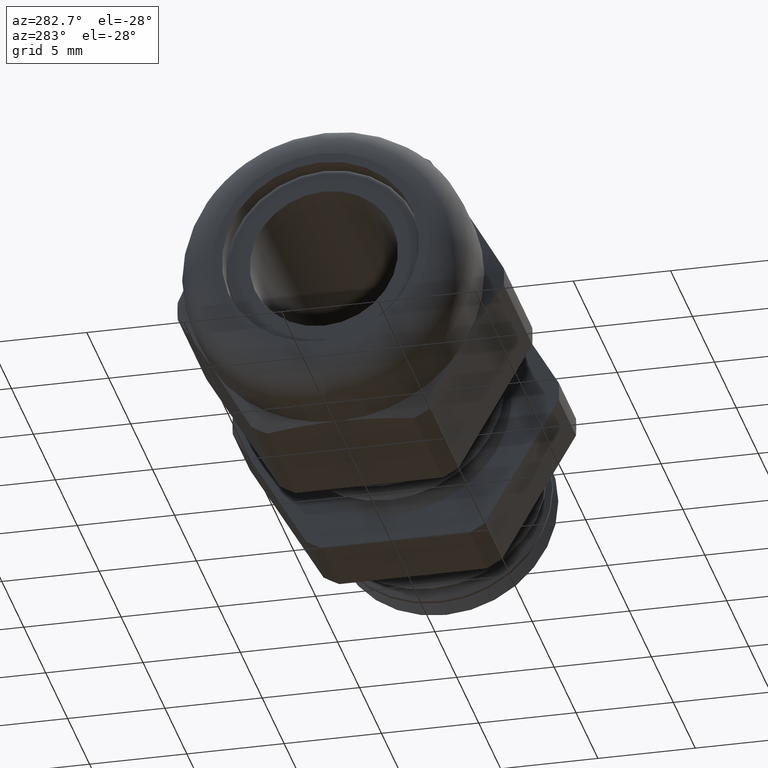
[diagram: clean part render]
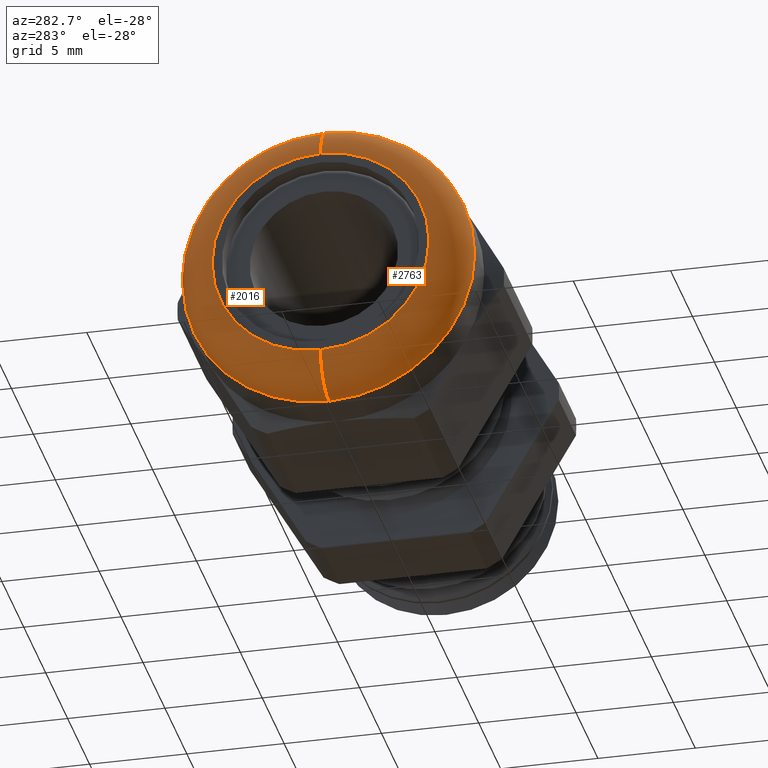
[diagram: same view with one multi-face feature highlighted, each face labeled with its STEP entity id]
A machine part, auxiliary view. The highlighted faces form ONE feature: a constant-radius fillet chain: 2 tangent blend faces with common blend radius 1.9152 mm. The faces share edges in the B-rep.
Their STEP definitions:
[1] entity #2763 (Torus):
#1252 = TOROIDAL_SURFACE ( 'NONE', #1315, 0.2195999999999996800, 0.07540000000000003600 ) ;
#1253 = FACE_OUTER_BOUND ( 'NONE', #2755, .T. ) ;
#1302 = DIRECTION ( 'NONE',  ( 0.0000000000000000000, 0.0000000000000000000, -1.000000000000000000 ) ) ;
#1303 = DIRECTION ( 'NONE',  ( 1.000000000000000000, 0.0000000000000000000, 0.0000000000000000000 ) ) ;
#1304 = AXIS2_PLACEMENT_3D ( 'NONE', #1310, #1303, #1302 ) ;
#1305 = CIRCLE ( 'NONE', #1304, 0.2949999999999997100 ) ;
#1310 = CARTESIAN_POINT ( 'NONE',  ( -0.7546000000000001600, 0.0000000000000000000, 0.0000000000000000000 ) ) ;
#1312 = DIRECTION ( 'NONE',  ( 0.0000000000000000000, 0.0000000000000000000, -1.000000000000000000 ) ) ;
#1313 = DIRECTION ( 'NONE',  ( 1.000000000000000000, 0.0000000000000000000, 0.0000000000000000000 ) ) ;
#1314 = CARTESIAN_POINT ( 'NONE',  ( -0.7546000000000001600, 0.0000000000000000000, 0.0000000000000000000 ) ) ;
#1315 = AXIS2_PLACEMENT_3D ( 'NONE', #1314, #1313, #1312 ) ;
#1446 = ORIENTED_EDGE ( 'NONE', *, *, #2030, .T. ) ;
#1502 = ORIENTED_EDGE ( 'NONE', *, *, #2767, .F. ) ;
#1598 = ORIENTED_EDGE ( 'NONE', *, *, #2045, .F. ) ;
#1609 = EDGE_CURVE ( 'NONE', #2020, #2019, #3018, .T. ) ;
#2019 = VERTEX_POINT ( 'NONE', #2320 ) ;
#2020 = VERTEX_POINT ( 'NONE', #2319 ) ;
#2028 = VERTEX_POINT ( 'NONE', #2370 ) ;
#2030 = EDGE_CURVE ( 'NONE', #2020, #2028, #2368, .T. ) ;
#2045 = EDGE_CURVE ( 'NONE', #2019, #2046, #2408, .T. ) ;
#2046 = VERTEX_POINT ( 'NONE', #2403 ) ;
#2319 = CARTESIAN_POINT ( 'NONE',  ( -0.8300000000000001800, 0.0000000000000000000, -0.2195999999999996800 ) ) ;
#2320 = CARTESIAN_POINT ( 'NONE',  ( -0.8300000000000001800, 3.151016214206136600E-017, 0.2195999999999996800 ) ) ;
#2364 = DIRECTION ( 'NONE',  ( 0.0000000000000000000, 0.0000000000000000000, -1.000000000000000000 ) ) ;
#2365 = DIRECTION ( 'NONE',  ( 0.0000000000000000000, -1.000000000000000000, 0.0000000000000000000 ) ) ;
#2366 = CARTESIAN_POINT ( 'NONE',  ( -0.7546000000000001600, 0.0000000000000000000, -0.2195999999999996800 ) ) ;
#2367 = AXIS2_PLACEMENT_3D ( 'NONE', #2366, #2365, #2364 ) ;
#2368 = CIRCLE ( 'NONE', #2367, 0.07540000000000003600 ) ;
#2370 = CARTESIAN_POINT ( 'NONE',  ( -0.7546000000000001600, 3.612708057484688900E-017, -0.2949999999999997100 ) ) ;
#2403 = CARTESIAN_POINT ( 'NONE',  ( -0.7546000000000001600, 0.0000000000000000000, 0.2949999999999997100 ) ) ;
#2404 = DIRECTION ( 'NONE',  ( 0.0000000000000000000, 1.224646799147353500E-016, 1.000000000000000000 ) ) ;
#2405 = DIRECTION ( 'NONE',  ( 0.0000000000000000000, 1.000000000000000000, -1.224646799147353200E-016 ) ) ;
#2406 = CARTESIAN_POINT ( 'NONE',  ( -0.7546000000000001600, 2.689324370927583800E-017, 0.2195999999999996800 ) ) ;
#2407 = AXIS2_PLACEMENT_3D ( 'NONE', #2406, #2405, #2404 ) ;
#2408 = CIRCLE ( 'NONE', #2407, 0.07540000000000003600 ) ;
#2755 = EDGE_LOOP ( 'NONE', ( #1598, #2784, #1446, #1502 ) ) ;
#2763 = ADVANCED_FACE ( 'NONE', ( #1253 ), #1252, .T. ) ;
#2767 = EDGE_CURVE ( 'NONE', #2046, #2028, #1305, .T. ) ;
#2784 = ORIENTED_EDGE ( 'NONE', *, *, #1609, .F. ) ;
#3014 = DIRECTION ( 'NONE',  ( 0.0000000000000000000, 0.0000000000000000000, -1.000000000000000000 ) ) ;
#3015 = DIRECTION ( 'NONE',  ( -1.000000000000000000, 0.0000000000000000000, 0.0000000000000000000 ) ) ;
#3016 = CARTESIAN_POINT ( 'NONE',  ( -0.8300000000000001800, 0.0000000000000000000, 0.0000000000000000000 ) ) ;
#3017 = AXIS2_PLACEMENT_3D ( 'NONE', #3016, #3015, #3014 ) ;
#3018 = CIRCLE ( 'NONE', #3017, 0.2195999999999996800 ) ;
[2] entity #2016 (Torus):
#2016 = ADVANCED_FACE ( 'NONE', ( #2331 ), #2330, .T. ) ;
#2017 = ORIENTED_EDGE ( 'NONE', *, *, #2018, .F. ) ;
#2018 = EDGE_CURVE ( 'NONE', #2019, #2020, #2324, .T. ) ;
#2019 = VERTEX_POINT ( 'NONE', #2320 ) ;
#2020 = VERTEX_POINT ( 'NONE', #2319 ) ;
#2028 = VERTEX_POINT ( 'NONE', #2370 ) ;
#2029 = ORIENTED_EDGE ( 'NONE', *, *, #2030, .F. ) ;
#2030 = EDGE_CURVE ( 'NONE', #2020, #2028, #2368, .T. ) ;
#2042 = EDGE_LOOP ( 'NONE', ( #2017, #2044, #2047, #2029 ) ) ;
#2044 = ORIENTED_EDGE ( 'NONE', *, *, #2045, .T. ) ;
#2045 = EDGE_CURVE ( 'NONE', #2019, #2046, #2408, .T. ) ;
#2046 = VERTEX_POINT ( 'NONE', #2403 ) ;
#2047 = ORIENTED_EDGE ( 'NONE', *, *, #2048, .F. ) ;
#2048 = EDGE_CURVE ( 'NONE', #2028, #2046, #2402, .T. ) ;
#2319 = CARTESIAN_POINT ( 'NONE',  ( -0.8300000000000001800, 0.0000000000000000000, -0.2195999999999996800 ) ) ;
#2320 = CARTESIAN_POINT ( 'NONE',  ( -0.8300000000000001800, 3.151016214206136600E-017, 0.2195999999999996800 ) ) ;
#2321 = DIRECTION ( 'NONE',  ( 0.0000000000000000000, 0.0000000000000000000, -1.000000000000000000 ) ) ;
#2322 = DIRECTION ( 'NONE',  ( -1.000000000000000000, 0.0000000000000000000, 0.0000000000000000000 ) ) ;
#2323 = AXIS2_PLACEMENT_3D ( 'NONE', #2329, #2322, #2321 ) ;
#2324 = CIRCLE ( 'NONE', #2323, 0.2195999999999996800 ) ;
#2325 = DIRECTION ( 'NONE',  ( 0.0000000000000000000, 0.0000000000000000000, -1.000000000000000000 ) ) ;
#2326 = DIRECTION ( 'NONE',  ( 1.000000000000000000, 0.0000000000000000000, 0.0000000000000000000 ) ) ;
#2327 = CARTESIAN_POINT ( 'NONE',  ( -0.7546000000000001600, 0.0000000000000000000, 0.0000000000000000000 ) ) ;
#2328 = AXIS2_PLACEMENT_3D ( 'NONE', #2327, #2326, #2325 ) ;
#2329 = CARTESIAN_POINT ( 'NONE',  ( -0.8300000000000001800, 0.0000000000000000000, 0.0000000000000000000 ) ) ;
#2330 = TOROIDAL_SURFACE ( 'NONE', #2328, 0.2195999999999996800, 0.07540000000000003600 ) ;
#2331 = FACE_OUTER_BOUND ( 'NONE', #2042, .T. ) ;
#2364 = DIRECTION ( 'NONE',  ( 0.0000000000000000000, 0.0000000000000000000, -1.000000000000000000 ) ) ;
#2365 = DIRECTION ( 'NONE',  ( 0.0000000000000000000, -1.000000000000000000, 0.0000000000000000000 ) ) ;
#2366 = CARTESIAN_POINT ( 'NONE',  ( -0.7546000000000001600, 0.0000000000000000000, -0.2195999999999996800 ) ) ;
#2367 = AXIS2_PLACEMENT_3D ( 'NONE', #2366, #2365, #2364 ) ;
#2368 = CIRCLE ( 'NONE', #2367, 0.07540000000000003600 ) ;
#2370 = CARTESIAN_POINT ( 'NONE',  ( -0.7546000000000001600, 3.612708057484688900E-017, -0.2949999999999997100 ) ) ;
#2398 = DIRECTION ( 'NONE',  ( 0.0000000000000000000, 0.0000000000000000000, -1.000000000000000000 ) ) ;
#2399 = DIRECTION ( 'NONE',  ( 1.000000000000000000, 0.0000000000000000000, 0.0000000000000000000 ) ) ;
#2400 = CARTESIAN_POINT ( 'NONE',  ( -0.7546000000000001600, 0.0000000000000000000, 0.0000000000000000000 ) ) ;
#2401 = AXIS2_PLACEMENT_3D ( 'NONE', #2400, #2399, #2398 ) ;
#2402 = CIRCLE ( 'NONE', #2401, 0.2949999999999997100 ) ;
#2403 = CARTESIAN_POINT ( 'NONE',  ( -0.7546000000000001600, 0.0000000000000000000, 0.2949999999999997100 ) ) ;
#2404 = DIRECTION ( 'NONE',  ( 0.0000000000000000000, 1.224646799147353500E-016, 1.000000000000000000 ) ) ;
#2405 = DIRECTION ( 'NONE',  ( 0.0000000000000000000, 1.000000000000000000, -1.224646799147353200E-016 ) ) ;
#2406 = CARTESIAN_POINT ( 'NONE',  ( -0.7546000000000001600, 2.689324370927583800E-017, 0.2195999999999996800 ) ) ;
#2407 = AXIS2_PLACEMENT_3D ( 'NONE', #2406, #2405, #2404 ) ;
#2408 = CIRCLE ( 'NONE', #2407, 0.07540000000000003600 ) ;